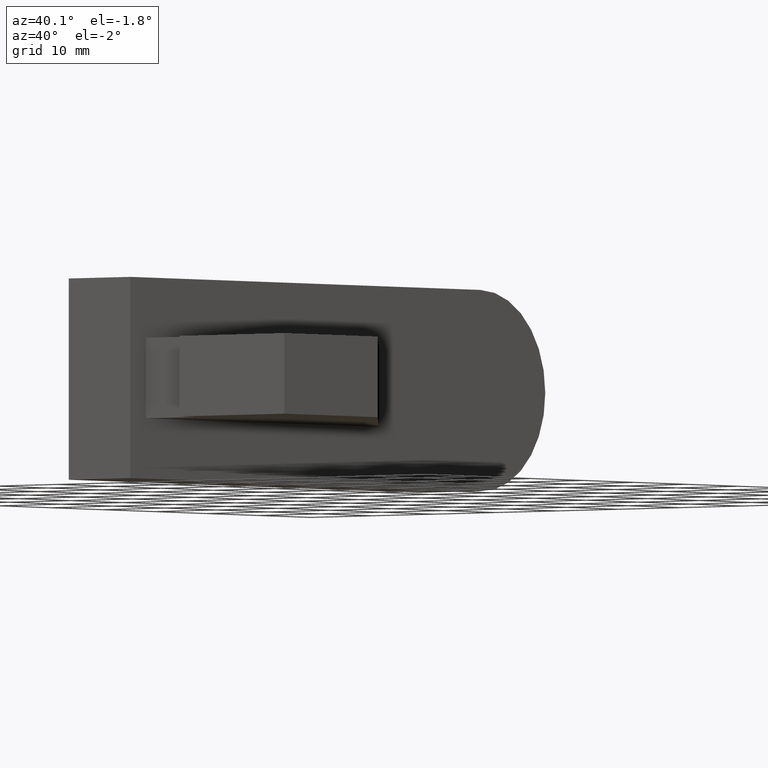
[diagram: clean part render]
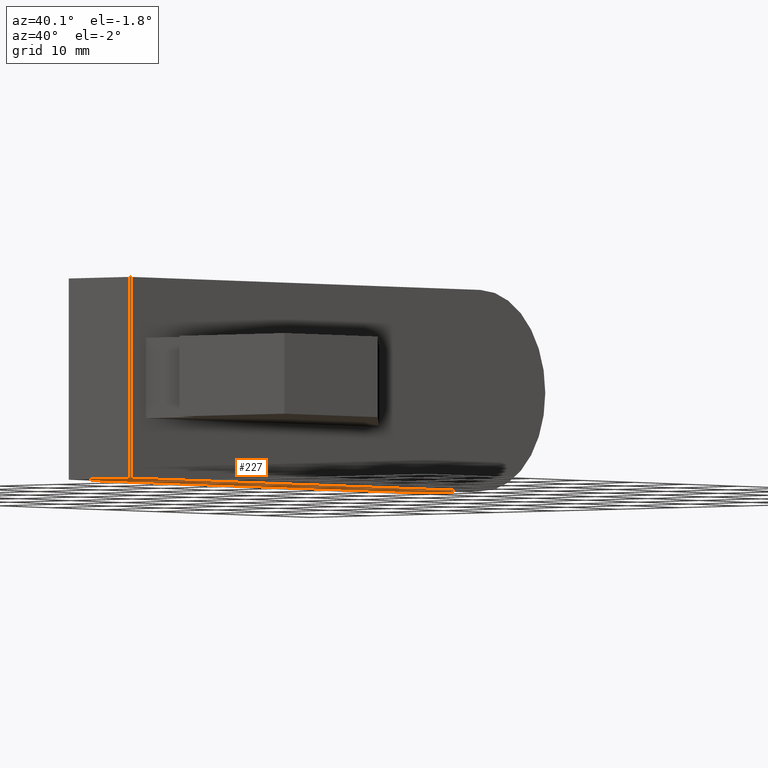
[diagram: same view with one face highlighted and labeled with its STEP entity id]
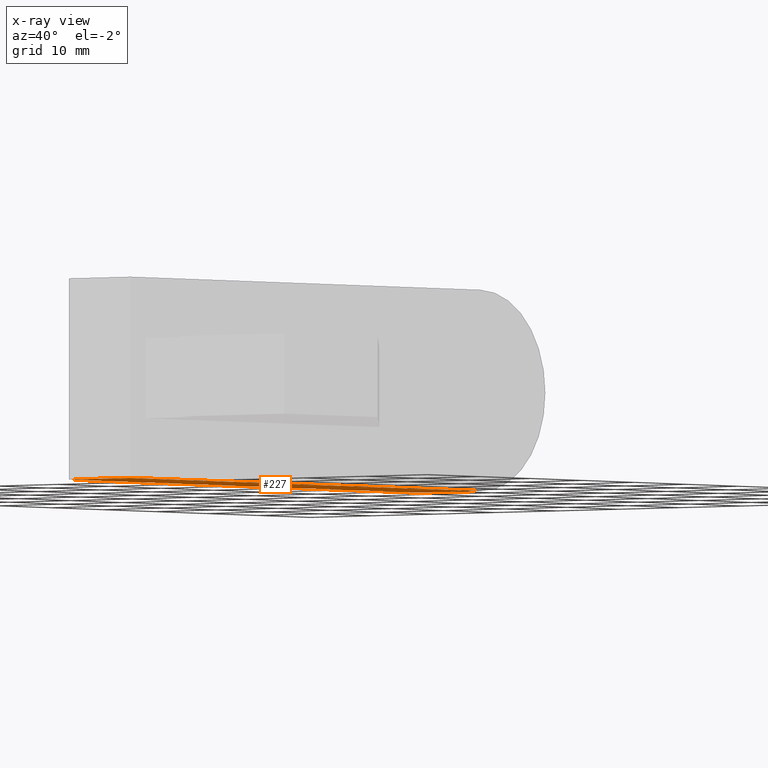
[diagram: x-ray of the same camera — body ghosted, the highlighted face saturated]
A machine part, auxiliary view. The second image highlights one B-rep face of the part: STEP entity #227.
The next image is the same camera in x-ray: the body ghosted, the highlighted face saturated — about 0% of this face is hidden behind the body in this view.
In plain terms, the highlighted planar face has unit normal (0, 0, -1).
Its self-contained STEP definition (entity closure, byte-faithful):
#20=FACE_OUTER_BOUND('',#34,.T.);
#34=EDGE_LOOP('',(#162,#163,#164,#165));
#49=LINE('',#340,#77);
#55=LINE('',#355,#83);
#56=LINE('',#356,#84);
#57=LINE('',#357,#85);
#77=VECTOR('',#279,10.);
#83=VECTOR('',#289,10.);
#84=VECTOR('',#290,10.);
#85=VECTOR('',#291,10.);
#104=VERTEX_POINT('',#336);
#106=VERTEX_POINT('',#339);
#112=VERTEX_POINT('',#353);
#113=VERTEX_POINT('',#354);
#125=EDGE_CURVE('',#106,#104,#49,.T.);
#132=EDGE_CURVE('',#112,#113,#55,.T.);
#133=EDGE_CURVE('',#106,#113,#56,.T.);
#134=EDGE_CURVE('',#104,#112,#57,.T.);
#162=ORIENTED_EDGE('',*,*,#132,.T.);
#163=ORIENTED_EDGE('',*,*,#133,.F.);
#164=ORIENTED_EDGE('',*,*,#125,.T.);
#165=ORIENTED_EDGE('',*,*,#134,.T.);
#215=PLANE('',#261);
#227=ADVANCED_FACE('',(#20),#215,.T.);
#261=AXIS2_PLACEMENT_3D('',#352,#287,#288);
#279=DIRECTION('',(0.,-1.,-1.97372982155583E-16));
#287=DIRECTION('center_axis',(0.,1.97372982155583E-16,-1.));
#288=DIRECTION('ref_axis',(-1.,0.,0.));
#289=DIRECTION('',(0.,1.,1.97372982155583E-16));
#290=DIRECTION('',(-1.,0.,0.));
#291=DIRECTION('',(-1.,0.,0.));
#336=CARTESIAN_POINT('',(-25.,2.22044604925031E-15,-12.5));
#339=CARTESIAN_POINT('',(-25.,67.5,-12.5));
#340=CARTESIAN_POINT('',(-25.,67.5,-12.5));
#352=CARTESIAN_POINT('Origin',(-25.,2.22044604925031E-15,-12.5));
#353=CARTESIAN_POINT('',(-35.,2.22044604925031E-15,-12.5));
#354=CARTESIAN_POINT('',(-35.,67.5,-12.5));
#355=CARTESIAN_POINT('',(-35.,67.5,-12.5));
#356=CARTESIAN_POINT('',(-25.,67.5,-12.5));
#357=CARTESIAN_POINT('',(-25.,2.22044604925031E-15,-12.5));